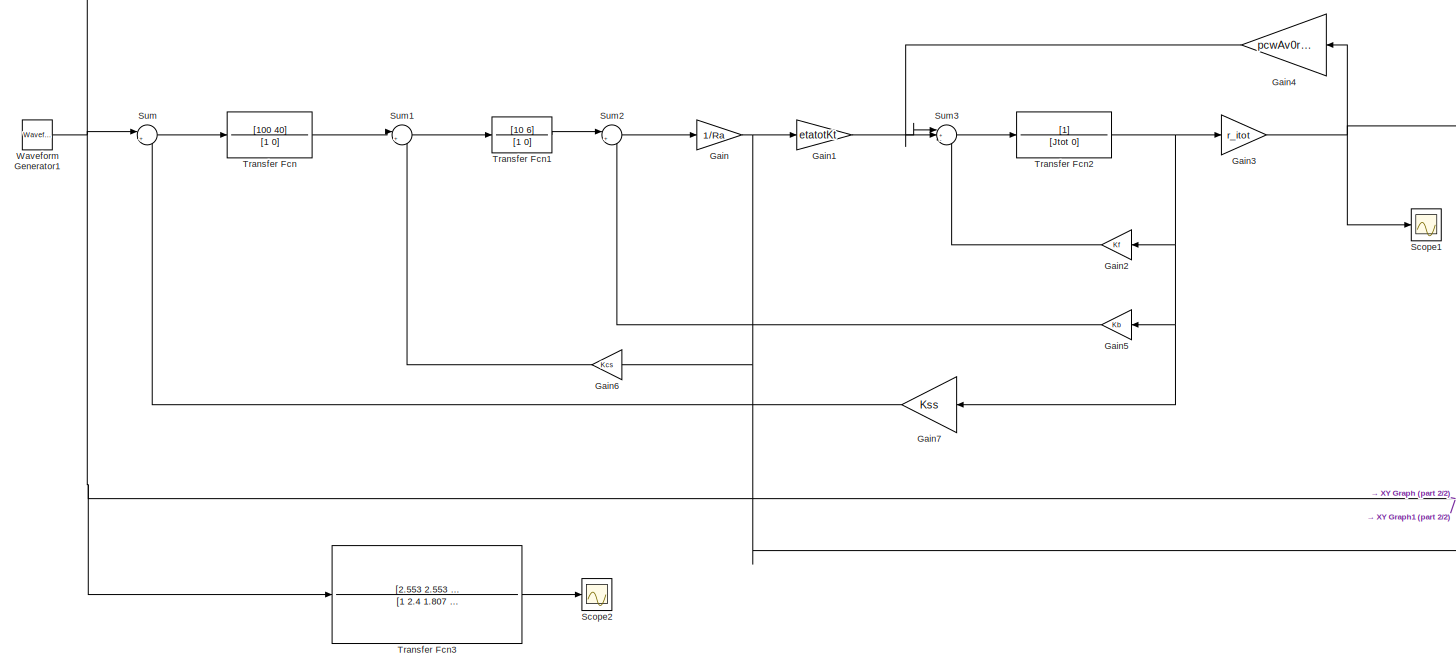
[diagram: root canvas - part 1/2, most of the canvas]
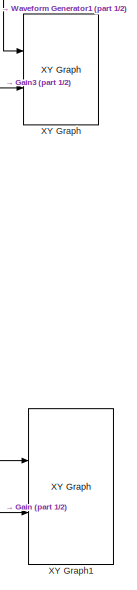
[diagram: root canvas - part 2/2, right side, full height]
MODEL slx_efbb800a0fc8
KIND model
CONFIG AbsTol = auto
CONFIG EnableMultiTasking = off
CONFIG FixedStep = auto
CONFIG MaxStep = auto
CONFIG MinStep = auto
CONFIG RelTol = 1e-3
CONFIG SampleTimeConstraint = Unconstrained
CONFIG SolverName = VariableStepAuto
CONFIG StartTime = 0.0
CONFIG StopTime = 8
BLOCK [Gain] Gain
  Gain = 1/Ra
BLOCK [Gain] Gain1
  Gain = etatotKt
BLOCK [Gain] Gain2
  Gain = Kf
BLOCK [Gain] Gain3
  Gain = r_itot
BLOCK [Gain] Gain4
  Gain = pcwAv0r_itot
BLOCK [Gain] Gain5
  Gain = Kb
BLOCK [Gain] Gain6
  Gain = Kcs
BLOCK [Gain] Gain7
  Gain = Kss
BLOCK [Scope] Scope1
  Floating = off
  NumInputPorts = 1
  Ports = [1]
  ScopeSpecificationString = Simulink.scopes.TimeScopeBlockCfg('CurrentConfiguration', extmgr.ConfigurationSet(extmgr.Configuration('Core','General UI',true),extmgr.Configuration('Core','Source UI',true),extmgr.Configuration('Sources','WiredSimulink',true,'DataLoggingVariableName','ScopeData1'),extmgr.Configuration('Visuals','Time Domain',true,'SerializedDisplays',{struct('MinYLimReal','-0.30805','MaxYLimReal','1.79974','YLab...<+1432ch>
BLOCK [Scope] Scope2
  Floating = off
  NumInputPorts = 1
  Ports = [1]
  ScopeSpecificationString = Simulink.scopes.TimeScopeBlockCfg('CurrentConfiguration', extmgr.ConfigurationSet(extmgr.Configuration('Core','General UI',true),extmgr.Configuration('Core','Source UI',true),extmgr.Configuration('Sources','WiredSimulink',true),extmgr.Configuration('Visuals','Time Domain',true,'SerializedDisplays',{struct('MinYLimReal','-0.30786','MaxYLimReal','1.79965','YLabelReal','','MinYLimMag','0.00000','MaxY...<+1403ch>
BLOCK [Sum] Sum
  Inputs = |+-
  Ports = [2, 1]
BLOCK [Sum] Sum1
  Inputs = |+-
  Ports = [2, 1]
BLOCK [Sum] Sum2
  Inputs = |+-
  Ports = [2, 1]
BLOCK [Sum] Sum3
  Inputs = |+--
  Ports = [3, 1]
BLOCK [TransferFcn] Transfer Fcn
  Denominator = [1 0]
  Description = Gsc(s)
  Numerator = [100 40]
BLOCK [TransferFcn] Transfer Fcn1
  Denominator = [1 0]
  Numerator = [10 6]
BLOCK [TransferFcn] Transfer Fcn2
  Denominator = [Jtot 0]
BLOCK [TransferFcn] Transfer Fcn3
  Denominator = [1 2.4 1.807 0.4314]
  Numerator = [2.553 2.553 .6128]
BLOCK [Reference] Waveform Generator1  REF=simulink/Sources/Waveform
Generator
  Ports = [0, 1]
  SourceBlock = simulink/Sources/Waveform\nGenerator
  SourceProductBaseCode = SL
  SourceType = WaveformGenerator
BLOCK [Reference] XY Graph  REF=simulink/Sinks/XY Graph
  Ports = [2]
  SourceBlock = simulink/Sinks/XY Graph
  SourceProductBaseCode = SL
  SourceType = XY scope.
BLOCK [Reference] XY Graph1  REF=simulink/Sinks/XY Graph
  Ports = [2]
  SourceBlock = simulink/Sinks/XY Graph
  SourceProductBaseCode = SL
  SourceType = XY scope.
LINE Gain1:1 -> Sum3:1
LINE Gain2:1 -> Sum3:3
NET Gain3:1 -> Gain4:1, Scope1:1, XY Graph:2
LINE Gain4:1 -> Sum3:2
LINE Gain5:1 -> Sum2:2
LINE Gain6:1 -> Sum1:2
LINE Gain7:1 -> Sum:2
NET Gain:1 -> Gain1:1, Gain6:1, XY Graph1:2
LINE Sum1:1 -> Transfer Fcn1:1
LINE Sum2:1 -> Gain:1
LINE Sum3:1 -> Transfer Fcn2:1
LINE Sum:1 -> Transfer Fcn:1
LINE Transfer Fcn1:1 -> Sum2:1
NET Transfer Fcn2:1 -> Gain2:1, Gain3:1, Gain5:1, Gain7:1
LINE Transfer Fcn3:1 -> Scope2:1
LINE Transfer Fcn:1 -> Sum1:1
NET Waveform Generator1:1 -> Sum:1, Transfer Fcn3:1, XY Graph1:1, XY Graph:1
note: NET lines group one-source signal fan-out (src -> all destinations, sorted); 1:1 wires keep LINE
